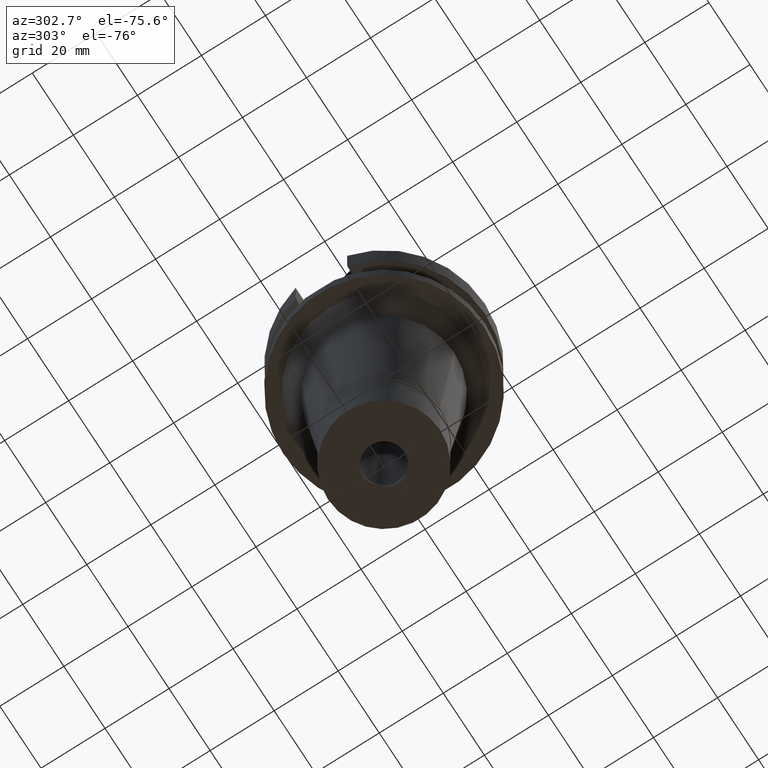
[diagram: clean part render]
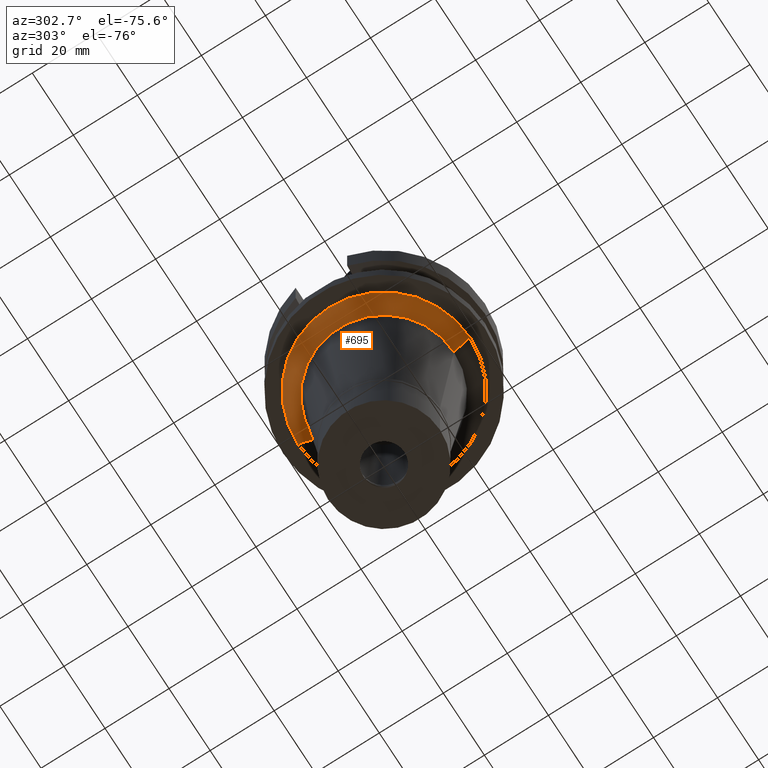
[diagram: same view with one face highlighted and labeled with its STEP entity id]
A machine part, auxiliary view. The second image highlights one B-rep face of the part: STEP entity #695.
In plain terms, the highlighted conical surface has half-angle 45 deg.
Its self-contained STEP definition (entity closure, byte-faithful):
#308 = VECTOR ( 'NONE', #425, 1000.000000000000000 ) ;
#411 = CARTESIAN_POINT ( 'NONE',  ( 0.0000000000000000000, -21.84818657723999635, -32.00000000000000000 ) ) ;
#425 = DIRECTION ( 'NONE',  ( 0.0000000000000000000, 0.7071067811865969777, -0.7071067811864980568 ) ) ;
#458 = VERTEX_POINT ( 'NONE', #411 ) ;
#545 = DIRECTION ( 'NONE',  ( 0.0000000000000000000, 0.0000000000000000000, -1.000000000000000000 ) ) ;
#550 = CARTESIAN_POINT ( 'NONE',  ( 0.0000000000000000000, -26.84818657723999991, -27.00000000000000000 ) ) ;
#554 = EDGE_CURVE ( 'NONE', #3028, #1009, #1333, .T. ) ;
#695 = ADVANCED_FACE ( 'NONE', ( #3125 ), #901, .T. ) ;
#718 = CARTESIAN_POINT ( 'NONE',  ( 0.0000000000000000000, 0.0000000000000000000, -27.00000000000000000 ) ) ;
#901 = CONICAL_SURFACE ( 'NONE', #2686, 24.34818657723999991, 0.7853981633972997312 ) ;
#985 = AXIS2_PLACEMENT_3D ( 'NONE', #2753, #2024, #1787 ) ;
#1005 = EDGE_CURVE ( 'NONE', #1620, #458, #2139, .T. ) ;
#1009 = VERTEX_POINT ( 'NONE', #2441 ) ;
#1034 = EDGE_LOOP ( 'NONE', ( #2073, #2183, #2690, #2884 ) ) ;
#1207 = CIRCLE ( 'NONE', #1958, 26.84818657723999991 ) ;
#1333 = LINE ( 'NONE', #2309, #2426 ) ;
#1450 = DIRECTION ( 'NONE',  ( 0.0000000000000000000, 1.000000000000000000, 0.0000000000000000000 ) ) ;
#1516 = DIRECTION ( 'NONE',  ( 0.0000000000000000000, -1.000000000000000000, 0.0000000000000000000 ) ) ;
#1590 = CIRCLE ( 'NONE', #985, 21.84818657723999635 ) ;
#1620 = VERTEX_POINT ( 'NONE', #550 ) ;
#1787 = DIRECTION ( 'NONE',  ( 0.0000000000000000000, -1.000000000000000000, 0.0000000000000000000 ) ) ;
#1958 = AXIS2_PLACEMENT_3D ( 'NONE', #718, #545, #1516 ) ;
#2024 = DIRECTION ( 'NONE',  ( 0.0000000000000000000, 0.0000000000000000000, -1.000000000000000000 ) ) ;
#2073 = ORIENTED_EDGE ( 'NONE', *, *, #2814, .F. ) ;
#2139 = LINE ( 'NONE', #2156, #308 ) ;
#2156 = CARTESIAN_POINT ( 'NONE',  ( 0.0000000000000000000, -26.84818657723999991, -27.00000000000000000 ) ) ;
#2183 = ORIENTED_EDGE ( 'NONE', *, *, #1005, .F. ) ;
#2309 = CARTESIAN_POINT ( 'NONE',  ( 0.0000000000000000000, 26.84818657723999991, -27.00000000000000000 ) ) ;
#2382 = CARTESIAN_POINT ( 'NONE',  ( 0.0000000000000000000, 26.84818657723999991, -27.00000000000000000 ) ) ;
#2426 = VECTOR ( 'NONE', #3040, 1000.000000000000000 ) ;
#2441 = CARTESIAN_POINT ( 'NONE',  ( 0.0000000000000000000, 21.84818657723999635, -32.00000000000000000 ) ) ;
#2586 = EDGE_CURVE ( 'NONE', #1620, #3028, #1207, .T. ) ;
#2686 = AXIS2_PLACEMENT_3D ( 'NONE', #2917, #2902, #1450 ) ;
#2690 = ORIENTED_EDGE ( 'NONE', *, *, #2586, .T. ) ;
#2753 = CARTESIAN_POINT ( 'NONE',  ( 0.0000000000000000000, 0.0000000000000000000, -32.00000000000000000 ) ) ;
#2814 = EDGE_CURVE ( 'NONE', #458, #1009, #1590, .T. ) ;
#2884 = ORIENTED_EDGE ( 'NONE', *, *, #554, .T. ) ;
#2902 = DIRECTION ( 'NONE',  ( 0.0000000000000000000, 0.0000000000000000000, 1.000000000000000000 ) ) ;
#2917 = CARTESIAN_POINT ( 'NONE',  ( 0.0000000000000000000, 0.0000000000000000000, -29.50000000000000000 ) ) ;
#3028 = VERTEX_POINT ( 'NONE', #2382 ) ;
#3040 = DIRECTION ( 'NONE',  ( 0.0000000000000000000, -0.7071067811865969777, -0.7071067811864980568 ) ) ;
#3125 = FACE_OUTER_BOUND ( 'NONE', #1034, .T. ) ;